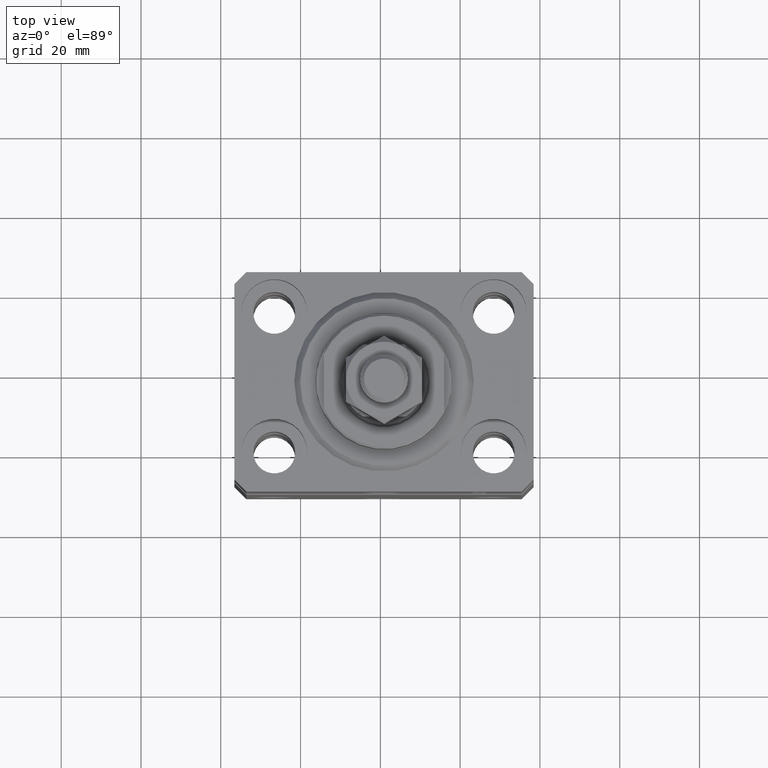
[diagram: clean part render]
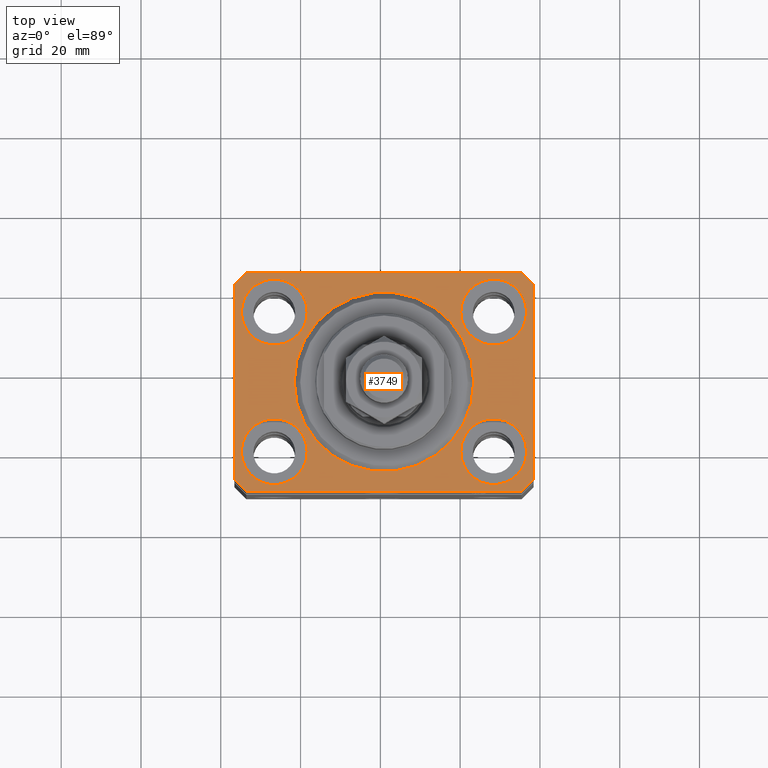
[diagram: same view with one face highlighted and labeled with its STEP entity id]
A machine part, top view. The second image highlights one B-rep face of the part: STEP entity #3749.
In plain terms, the highlighted planar face has unit normal (0, 0, 1).
Its self-contained STEP definition (entity closure, byte-faithful):
#106 = CARTESIAN_POINT ( 'NONE',  ( 0.000000000000000000, 0.000000000000000000, 0.000000000000000000 ) ) ;
#170 = CIRCLE ( 'NONE', #6136, 8.250000000000000000 ) ;
#200 = EDGE_CURVE ( 'NONE', #46211, #41682, #10388, .T. ) ;
#242 = EDGE_CURVE ( 'NONE', #13019, #41334, #43479, .T. ) ;
#299 = FACE_BOUND ( 'NONE', #5002, .T. ) ;
#502 = LINE ( 'NONE', #22429, #36576 ) ;
#1129 = ORIENTED_EDGE ( 'NONE', *, *, #14428, .F. ) ;
#1440 = CIRCLE ( 'NONE', #32802, 22.50000000000000355 ) ;
#1482 = CIRCLE ( 'NONE', #11299, 8.249999999999992895 ) ;
#1500 = DIRECTION ( 'NONE',  ( 1.076236605503979380E-14, 1.000000000000000000, 0.000000000000000000 ) ) ;
#1578 = EDGE_LOOP ( 'NONE', ( #12248, #11526, #13552, #6996, #29388, #19197, #25225, #3131 ) ) ;
#1864 = VERTEX_POINT ( 'NONE', #27892 ) ;
#2076 = CARTESIAN_POINT ( 'NONE',  ( 34.50000000000056843, 27.50000000000000000, 0.000000000000000000 ) ) ;
#2214 = CARTESIAN_POINT ( 'NONE',  ( -22.50000000000000355, 2.755455298081545172E-15, 0.000000000000000000 ) ) ;
#3131 = ORIENTED_EDGE ( 'NONE', *, *, #3818, .T. ) ;
#3220 = VECTOR ( 'NONE', #5142, 1000.000000000000000 ) ;
#3275 = VERTEX_POINT ( 'NONE', #5815 ) ;
#3749 = ADVANCED_FACE ( 'NONE', ( #5741, #7079, #35807, #35589, #299, #17363 ), #43283, .T. ) ;
#3818 = EDGE_CURVE ( 'NONE', #3275, #8472, #32071, .T. ) ;
#4198 = CARTESIAN_POINT ( 'NONE',  ( -27.50000000000000355, -17.50000000000000000, 0.000000000000000000 ) ) ;
#4203 = CARTESIAN_POINT ( 'NONE',  ( 19.25000000000000000, 17.50000000000001066, 0.000000000000000000 ) ) ;
#4365 = EDGE_CURVE ( 'NONE', #18970, #12185, #20199, .T. ) ;
#4859 = CARTESIAN_POINT ( 'NONE',  ( -27.50000000000000355, -17.50000000000000000, 0.000000000000000000 ) ) ;
#5002 = EDGE_LOOP ( 'NONE', ( #18117, #35068 ) ) ;
#5049 = EDGE_CURVE ( 'NONE', #8472, #13019, #16096, .T. ) ;
#5081 = VERTEX_POINT ( 'NONE', #45310 ) ;
#5100 = LINE ( 'NONE', #34312, #7721 ) ;
#5142 = DIRECTION ( 'NONE',  ( 1.000000000000000000, 0.000000000000000000, 0.000000000000000000 ) ) ;
#5487 = CARTESIAN_POINT ( 'NONE',  ( -19.25000000000000355, 17.50000000000000000, 0.000000000000000000 ) ) ;
#5741 = FACE_BOUND ( 'NONE', #10728, .T. ) ;
#5758 = EDGE_CURVE ( 'NONE', #42712, #1864, #35603, .T. ) ;
#5812 = DIRECTION ( 'NONE',  ( -1.000000000000000000, 0.000000000000000000, 0.000000000000000000 ) ) ;
#5815 = CARTESIAN_POINT ( 'NONE',  ( 37.50000000000051870, 24.49999999999995381, 0.000000000000000000 ) ) ;
#6136 = AXIS2_PLACEMENT_3D ( 'NONE', #28120, #33786, #42381 ) ;
#6996 = ORIENTED_EDGE ( 'NONE', *, *, #21973, .T. ) ;
#7079 = FACE_BOUND ( 'NONE', #27748, .T. ) ;
#7185 = AXIS2_PLACEMENT_3D ( 'NONE', #27410, #10127, #14082 ) ;
#7463 = VERTEX_POINT ( 'NONE', #5487 ) ;
#7536 = VERTEX_POINT ( 'NONE', #2214 ) ;
#7664 = EDGE_CURVE ( 'NONE', #7536, #36822, #16352, .T. ) ;
#7697 = DIRECTION ( 'NONE',  ( 1.000000000000000000, 0.000000000000000000, 0.000000000000000000 ) ) ;
#7721 = VECTOR ( 'NONE', #20290, 1000.000000000000000 ) ;
#7943 = DIRECTION ( 'NONE',  ( -0.7071067811865471286, -0.7071067811865479058, 0.000000000000000000 ) ) ;
#8423 = LINE ( 'NONE', #18701, #3220 ) ;
#8472 = VERTEX_POINT ( 'NONE', #39352 ) ;
#8508 = EDGE_CURVE ( 'NONE', #36822, #7536, #1440, .T. ) ;
#8641 = CARTESIAN_POINT ( 'NONE',  ( 19.25000000000000000, -17.50000000000000000, 0.000000000000000000 ) ) ;
#8792 = ORIENTED_EDGE ( 'NONE', *, *, #4365, .F. ) ;
#9452 = EDGE_CURVE ( 'NONE', #41334, #43352, #502, .T. ) ;
#10127 = DIRECTION ( 'NONE',  ( 0.000000000000000000, 0.000000000000000000, 1.000000000000000000 ) ) ;
#10388 = CIRCLE ( 'NONE', #19282, 8.250000000000000000 ) ;
#10514 = VECTOR ( 'NONE', #38860, 1000.000000000000114 ) ;
#10585 = DIRECTION ( 'NONE',  ( 1.000000000000000000, 0.000000000000000000, -0.000000000000000000 ) ) ;
#10728 = EDGE_LOOP ( 'NONE', ( #16063, #19617 ) ) ;
#11299 = AXIS2_PLACEMENT_3D ( 'NONE', #22756, #40081, #33502 ) ;
#11475 = CARTESIAN_POINT ( 'NONE',  ( -34.49999999999999289, 27.50000000000000000, 0.000000000000000000 ) ) ;
#11526 = ORIENTED_EDGE ( 'NONE', *, *, #242, .T. ) ;
#12023 = CARTESIAN_POINT ( 'NONE',  ( 34.49999999999999289, -27.49999999999999645, 0.000000000000000000 ) ) ;
#12185 = VERTEX_POINT ( 'NONE', #19088 ) ;
#12248 = ORIENTED_EDGE ( 'NONE', *, *, #5049, .T. ) ;
#12892 = CIRCLE ( 'NONE', #18842, 8.250000000000000000 ) ;
#13019 = VERTEX_POINT ( 'NONE', #11475 ) ;
#13429 = DIRECTION ( 'NONE',  ( 0.000000000000000000, 0.000000000000000000, 1.000000000000000000 ) ) ;
#13522 = AXIS2_PLACEMENT_3D ( 'NONE', #28571, #42837, #10585 ) ;
#13552 = ORIENTED_EDGE ( 'NONE', *, *, #9452, .T. ) ;
#14082 = DIRECTION ( 'NONE',  ( 1.000000000000000000, 0.000000000000000000, 0.000000000000000000 ) ) ;
#14172 = ORIENTED_EDGE ( 'NONE', *, *, #28292, .F. ) ;
#14330 = AXIS2_PLACEMENT_3D ( 'NONE', #37233, #33958, #29758 ) ;
#14351 = DIRECTION ( 'NONE',  ( 1.000000000000000000, 0.000000000000000000, 0.000000000000000000 ) ) ;
#14428 = EDGE_CURVE ( 'NONE', #20189, #7463, #170, .T. ) ;
#14836 = CARTESIAN_POINT ( 'NONE',  ( 37.49999999999999289, -24.50000000000000000, 0.000000000000000000 ) ) ;
#15386 = VERTEX_POINT ( 'NONE', #34219 ) ;
#16056 = EDGE_LOOP ( 'NONE', ( #14172, #1129 ) ) ;
#16063 = ORIENTED_EDGE ( 'NONE', *, *, #200, .F. ) ;
#16096 = LINE ( 'NONE', #2076, #45397 ) ;
#16352 = CIRCLE ( 'NONE', #46225, 22.50000000000000355 ) ;
#16511 = VERTEX_POINT ( 'NONE', #8641 ) ;
#16868 = CARTESIAN_POINT ( 'NONE',  ( 27.50000000000000355, -17.50000000000000000, 0.000000000000000000 ) ) ;
#17124 = EDGE_CURVE ( 'NONE', #16511, #5081, #12892, .T. ) ;
#17363 = FACE_OUTER_BOUND ( 'NONE', #1578, .T. ) ;
#17739 = EDGE_CURVE ( 'NONE', #5081, #16511, #30741, .T. ) ;
#18117 = ORIENTED_EDGE ( 'NONE', *, *, #8508, .F. ) ;
#18302 = DIRECTION ( 'NONE',  ( 1.000000000000000000, 0.000000000000000000, 0.000000000000000000 ) ) ;
#18442 = DIRECTION ( 'NONE',  ( 0.000000000000000000, 0.000000000000000000, 1.000000000000000000 ) ) ;
#18701 = CARTESIAN_POINT ( 'NONE',  ( -34.49999999999998579, -27.49999999999999645, 0.000000000000000000 ) ) ;
#18842 = AXIS2_PLACEMENT_3D ( 'NONE', #16868, #24121, #20376 ) ;
#18970 = VERTEX_POINT ( 'NONE', #4203 ) ;
#18984 = CARTESIAN_POINT ( 'NONE',  ( 0.000000000000000000, 0.000000000000000000, 0.000000000000000000 ) ) ;
#19088 = CARTESIAN_POINT ( 'NONE',  ( 35.74999999999999289, 17.50000000000001066, 0.000000000000000000 ) ) ;
#19096 = CIRCLE ( 'NONE', #7185, 8.250000000000000000 ) ;
#19197 = ORIENTED_EDGE ( 'NONE', *, *, #5758, .T. ) ;
#19282 = AXIS2_PLACEMENT_3D ( 'NONE', #4198, #18442, #36450 ) ;
#19617 = ORIENTED_EDGE ( 'NONE', *, *, #45780, .F. ) ;
#20189 = VERTEX_POINT ( 'NONE', #38336 ) ;
#20199 = CIRCLE ( 'NONE', #20960, 8.249999999999992895 ) ;
#20290 = DIRECTION ( 'NONE',  ( 0.7071067811865483499, -0.7071067811865466846, 0.000000000000000000 ) ) ;
#20376 = DIRECTION ( 'NONE',  ( 1.000000000000000000, 0.000000000000000000, 0.000000000000000000 ) ) ;
#20960 = AXIS2_PLACEMENT_3D ( 'NONE', #29133, #43635, #35925 ) ;
#21973 = EDGE_CURVE ( 'NONE', #43352, #15386, #5100, .T. ) ;
#22134 = CARTESIAN_POINT ( 'NONE',  ( 22.50000000000000355, 0.000000000000000000, 0.000000000000000000 ) ) ;
#22429 = CARTESIAN_POINT ( 'NONE',  ( -37.49999999999999289, 24.50000000000000000, 0.000000000000000000 ) ) ;
#22724 = DIRECTION ( 'NONE',  ( 0.000000000000000000, 0.000000000000000000, 1.000000000000000000 ) ) ;
#22756 = CARTESIAN_POINT ( 'NONE',  ( 27.49999999999999645, 17.50000000000001066, 0.000000000000000000 ) ) ;
#24121 = DIRECTION ( 'NONE',  ( 0.000000000000000000, 0.000000000000000000, 1.000000000000000000 ) ) ;
#24615 = ORIENTED_EDGE ( 'NONE', *, *, #17124, .F. ) ;
#24656 = VECTOR ( 'NONE', #1500, 1000.000000000000000 ) ;
#25225 = ORIENTED_EDGE ( 'NONE', *, *, #39446, .T. ) ;
#25816 = LINE ( 'NONE', #14836, #24656 ) ;
#26345 = ORIENTED_EDGE ( 'NONE', *, *, #17739, .F. ) ;
#27410 = CARTESIAN_POINT ( 'NONE',  ( -27.50000000000000355, 17.50000000000000000, 0.000000000000000000 ) ) ;
#27663 = DIRECTION ( 'NONE',  ( 0.7071067811865474617, 0.7071067811865474617, 0.000000000000000000 ) ) ;
#27748 = EDGE_LOOP ( 'NONE', ( #26345, #24615 ) ) ;
#27892 = CARTESIAN_POINT ( 'NONE',  ( 37.49999999999999289, -24.50000000000000000, 0.000000000000000000 ) ) ;
#28120 = CARTESIAN_POINT ( 'NONE',  ( -27.50000000000000355, 17.50000000000000000, 0.000000000000000000 ) ) ;
#28292 = EDGE_CURVE ( 'NONE', #7463, #20189, #19096, .T. ) ;
#28476 = CARTESIAN_POINT ( 'NONE',  ( -35.75000000000000711, -17.50000000000000000, 0.000000000000000000 ) ) ;
#28571 = CARTESIAN_POINT ( 'NONE',  ( 0.000000000000000000, 0.000000000000000000, 0.000000000000000000 ) ) ;
#28754 = CARTESIAN_POINT ( 'NONE',  ( -34.49999999999999289, 27.50000000000000000, 0.000000000000000000 ) ) ;
#29133 = CARTESIAN_POINT ( 'NONE',  ( 27.49999999999999645, 17.50000000000001066, 0.000000000000000000 ) ) ;
#29388 = ORIENTED_EDGE ( 'NONE', *, *, #45412, .T. ) ;
#29758 = DIRECTION ( 'NONE',  ( 1.000000000000000000, 0.000000000000000000, 0.000000000000000000 ) ) ;
#30741 = CIRCLE ( 'NONE', #14330, 8.250000000000000000 ) ;
#32071 = LINE ( 'NONE', #34486, #10514 ) ;
#32802 = AXIS2_PLACEMENT_3D ( 'NONE', #18984, #22724, #18302 ) ;
#32852 = EDGE_LOOP ( 'NONE', ( #34803, #8792 ) ) ;
#32907 = CARTESIAN_POINT ( 'NONE',  ( -37.49999999999999289, -24.50000000000000000, 0.000000000000000000 ) ) ;
#33502 = DIRECTION ( 'NONE',  ( 1.000000000000000000, 0.000000000000000000, 0.000000000000000000 ) ) ;
#33786 = DIRECTION ( 'NONE',  ( 0.000000000000000000, 0.000000000000000000, 1.000000000000000000 ) ) ;
#33958 = DIRECTION ( 'NONE',  ( 0.000000000000000000, 0.000000000000000000, 1.000000000000000000 ) ) ;
#34219 = CARTESIAN_POINT ( 'NONE',  ( -34.49999999999998579, -27.49999999999999645, 0.000000000000000000 ) ) ;
#34312 = CARTESIAN_POINT ( 'NONE',  ( -37.49999999999999289, -24.50000000000000000, 0.000000000000000000 ) ) ;
#34486 = CARTESIAN_POINT ( 'NONE',  ( 37.50000000000051870, 24.49999999999995381, 0.000000000000000000 ) ) ;
#34803 = ORIENTED_EDGE ( 'NONE', *, *, #39479, .F. ) ;
#35068 = ORIENTED_EDGE ( 'NONE', *, *, #7664, .F. ) ;
#35589 = FACE_BOUND ( 'NONE', #16056, .T. ) ;
#35603 = LINE ( 'NONE', #45427, #42440 ) ;
#35807 = FACE_BOUND ( 'NONE', #32852, .T. ) ;
#35925 = DIRECTION ( 'NONE',  ( 1.000000000000000000, 0.000000000000000000, 0.000000000000000000 ) ) ;
#36025 = CIRCLE ( 'NONE', #44256, 8.250000000000000000 ) ;
#36450 = DIRECTION ( 'NONE',  ( 1.000000000000000000, 0.000000000000000000, 0.000000000000000000 ) ) ;
#36576 = VECTOR ( 'NONE', #44171, 1000.000000000000000 ) ;
#36822 = VERTEX_POINT ( 'NONE', #22134 ) ;
#37233 = CARTESIAN_POINT ( 'NONE',  ( 27.50000000000000355, -17.50000000000000000, 0.000000000000000000 ) ) ;
#38336 = CARTESIAN_POINT ( 'NONE',  ( -35.75000000000000711, 17.50000000000000000, 0.000000000000000000 ) ) ;
#38860 = DIRECTION ( 'NONE',  ( -0.7071067811865356934, 0.7071067811865594521, 0.000000000000000000 ) ) ;
#39352 = CARTESIAN_POINT ( 'NONE',  ( 34.50000000000056843, 27.50000000000000000, 0.000000000000000000 ) ) ;
#39446 = EDGE_CURVE ( 'NONE', #1864, #3275, #25816, .T. ) ;
#39479 = EDGE_CURVE ( 'NONE', #12185, #18970, #1482, .T. ) ;
#39689 = CARTESIAN_POINT ( 'NONE',  ( -37.49999999999999289, 24.50000000000000000, 0.000000000000000000 ) ) ;
#40081 = DIRECTION ( 'NONE',  ( 0.000000000000000000, 0.000000000000000000, 1.000000000000000000 ) ) ;
#41334 = VERTEX_POINT ( 'NONE', #39689 ) ;
#41682 = VERTEX_POINT ( 'NONE', #28476 ) ;
#42381 = DIRECTION ( 'NONE',  ( 1.000000000000000000, 0.000000000000000000, 0.000000000000000000 ) ) ;
#42440 = VECTOR ( 'NONE', #27663, 1000.000000000000114 ) ;
#42482 = VECTOR ( 'NONE', #7943, 1000.000000000000000 ) ;
#42712 = VERTEX_POINT ( 'NONE', #12023 ) ;
#42837 = DIRECTION ( 'NONE',  ( 0.000000000000000000, 0.000000000000000000, 1.000000000000000000 ) ) ;
#43283 = PLANE ( 'NONE',  #13522 ) ;
#43352 = VERTEX_POINT ( 'NONE', #32907 ) ;
#43457 = DIRECTION ( 'NONE',  ( 0.000000000000000000, 0.000000000000000000, 1.000000000000000000 ) ) ;
#43479 = LINE ( 'NONE', #28754, #42482 ) ;
#43635 = DIRECTION ( 'NONE',  ( 0.000000000000000000, 0.000000000000000000, 1.000000000000000000 ) ) ;
#44073 = CARTESIAN_POINT ( 'NONE',  ( -19.25000000000000355, -17.50000000000000000, 0.000000000000000000 ) ) ;
#44171 = DIRECTION ( 'NONE',  ( 0.000000000000000000, -1.000000000000000000, 0.000000000000000000 ) ) ;
#44256 = AXIS2_PLACEMENT_3D ( 'NONE', #4859, #43457, #7697 ) ;
#45310 = CARTESIAN_POINT ( 'NONE',  ( 35.75000000000000711, -17.50000000000000000, 0.000000000000000000 ) ) ;
#45397 = VECTOR ( 'NONE', #5812, 1000.000000000000000 ) ;
#45412 = EDGE_CURVE ( 'NONE', #15386, #42712, #8423, .T. ) ;
#45427 = CARTESIAN_POINT ( 'NONE',  ( 34.49999999999999289, -27.49999999999999645, 0.000000000000000000 ) ) ;
#45780 = EDGE_CURVE ( 'NONE', #41682, #46211, #36025, .T. ) ;
#46211 = VERTEX_POINT ( 'NONE', #44073 ) ;
#46225 = AXIS2_PLACEMENT_3D ( 'NONE', #106, #13429, #14351 ) ;